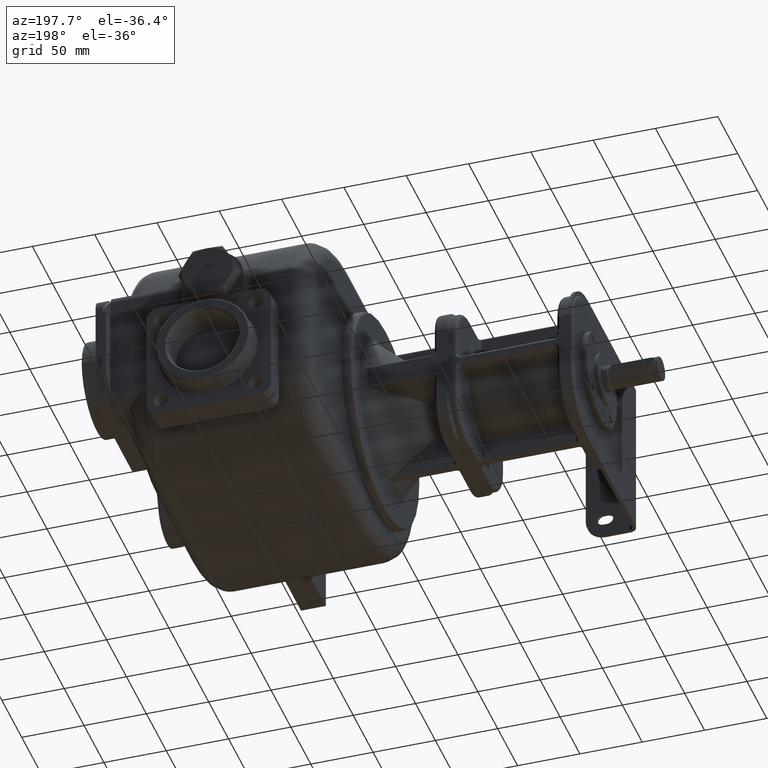
[diagram: clean part render]
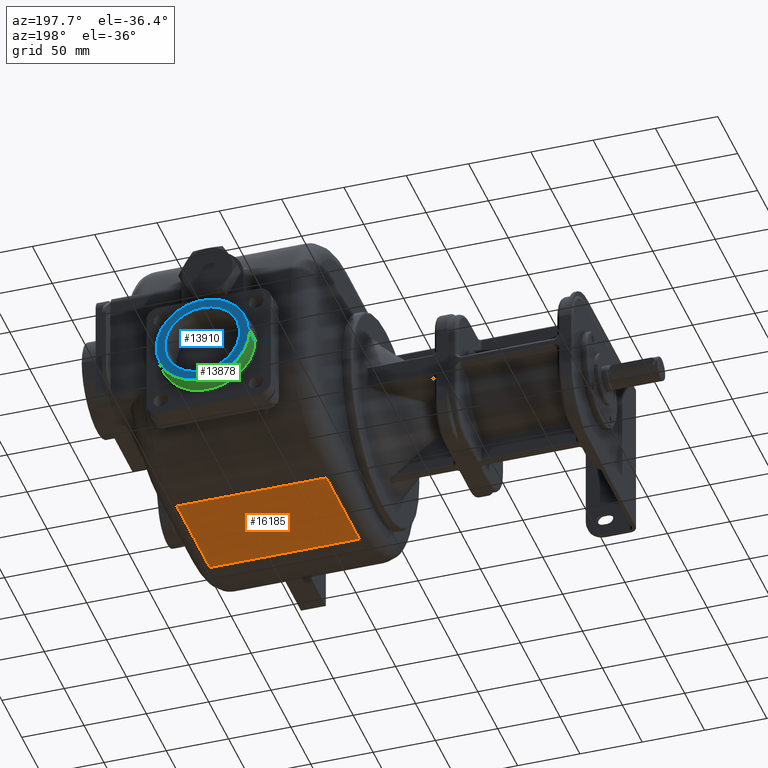
[diagram: same view with three faces highlighted in distinct colors, each labeled with its STEP entity id]
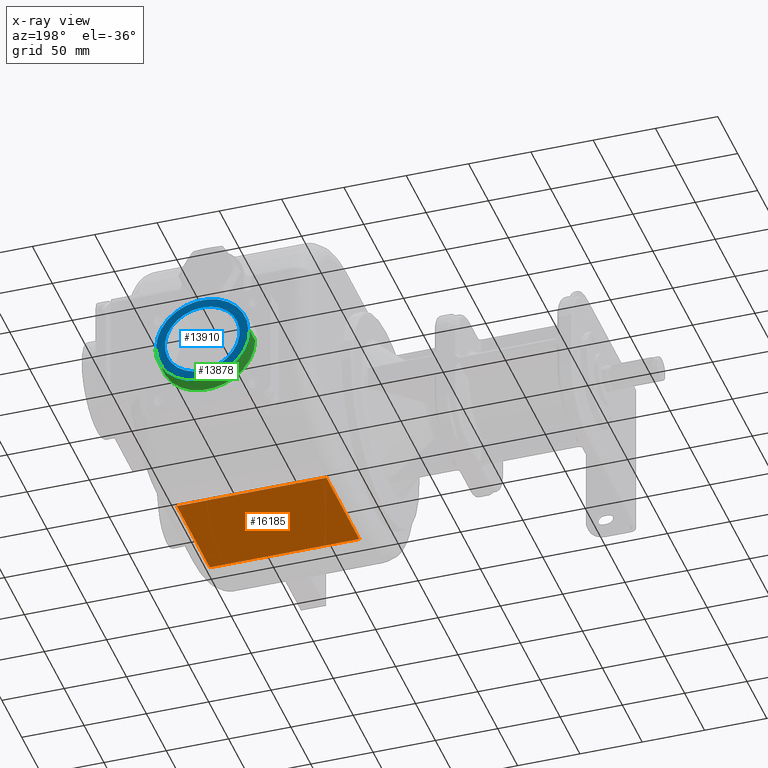
[diagram: x-ray of the same camera — body ghosted, the three highlighted faces saturated]
A machine part, auxiliary view with three faces highlighted in distinct colors.
The next image is the same camera in x-ray (body ghosted, the three faces saturated) — at least one of them is partly hidden behind the body in this view.
Their STEP definitions:

[orange] entity #16185 — the highlighted planar face has unit normal (0, 0, -1).
#2593=DIRECTION('',(0.E0,-1.E0,0.E0));
#2594=VECTOR('',#2593,8.285014036194E1);
#2595=CARTESIAN_POINT('',(-7.E1,1.868501403620E2,-1.03E2));
#2596=LINE('',#2595,#2594);
#2597=DIRECTION('',(0.E0,1.E0,0.E0));
#2598=VECTOR('',#2597,8.285014036159E1);
#2599=CARTESIAN_POINT('',(5.E1,1.04E2,-1.03E2));
#2600=LINE('',#2599,#2598);
#2601=DIRECTION('',(1.E0,-2.978595148306E-12,0.E0));
#2602=VECTOR('',#2601,1.2E2);
#2603=CARTESIAN_POINT('',(-7.E1,1.868501403620E2,-1.03E2));
#2604=LINE('',#2603,#2602);
#2774=DIRECTION('',(1.E0,-6.347515106124E-14,0.E0));
#2775=VECTOR('',#2774,1.2E2);
#2776=CARTESIAN_POINT('',(-7.E1,1.04E2,-1.03E2));
#2777=LINE('',#2776,#2775);
#11955=CARTESIAN_POINT('',(5.E1,1.868501403619E2,-1.03E2));
#11957=VERTEX_POINT('',#11955);
#11965=CARTESIAN_POINT('',(5.E1,1.04E2,-1.03E2));
#11966=VERTEX_POINT('',#11965);
#11994=CARTESIAN_POINT('',(-7.E1,1.868501403619E2,-1.03E2));
#11996=VERTEX_POINT('',#11994);
#11999=CARTESIAN_POINT('',(-7.E1,1.04E2,-1.03E2));
#12000=VERTEX_POINT('',#11999);
#16172=CARTESIAN_POINT('',(-8.5E1,1.868501403619E2,-1.03E2));
#16173=DIRECTION('',(0.E0,0.E0,-1.E0));
#16174=DIRECTION('',(0.E0,-1.E0,0.E0));
#16175=AXIS2_PLACEMENT_3D('',#16172,#16173,#16174);
#16176=PLANE('',#16175);
#16178=ORIENTED_EDGE('',*,*,#16177,.T.);
#16180=ORIENTED_EDGE('',*,*,#16179,.T.);
#16181=ORIENTED_EDGE('',*,*,#15191,.T.);
#16182=ORIENTED_EDGE('',*,*,#14621,.F.);
#16183=EDGE_LOOP('',(#16178,#16180,#16181,#16182));
#16184=FACE_OUTER_BOUND('',#16183,.F.);
#16185=ADVANCED_FACE('',(#16184),#16176,.T.);
#14621=EDGE_CURVE('',#11996,#11957,#2604,.T.);
#15191=EDGE_CURVE('',#11966,#11957,#2600,.T.);
#16177=EDGE_CURVE('',#11996,#12000,#2596,.T.);
#16179=EDGE_CURVE('',#12000,#11966,#2777,.T.);

[blue] entity #13910 — the highlighted planar face has unit normal (0, 1, 0).
#319=CARTESIAN_POINT('',(-1.E1,3.11E2,-4.5E1));
#320=DIRECTION('',(0.E0,1.E0,0.E0));
#321=DIRECTION('',(-1.E0,0.E0,0.E0));
#322=AXIS2_PLACEMENT_3D('',#319,#320,#321);
#324=CARTESIAN_POINT('',(-1.E1,3.11E2,-4.5E1));
#325=DIRECTION('',(0.E0,1.E0,0.E0));
#326=DIRECTION('',(1.E0,0.E0,0.E0));
#327=AXIS2_PLACEMENT_3D('',#324,#325,#326);
#329=CARTESIAN_POINT('',(-1.E1,3.11E2,-4.5E1));
#330=DIRECTION('',(0.E0,1.E0,0.E0));
#331=DIRECTION('',(0.E0,0.E0,1.E0));
#332=AXIS2_PLACEMENT_3D('',#329,#330,#331);
#334=CARTESIAN_POINT('',(-1.E1,3.11E2,-4.5E1));
#335=DIRECTION('',(0.E0,1.E0,0.E0));
#336=DIRECTION('',(0.E0,0.E0,-1.E0));
#337=AXIS2_PLACEMENT_3D('',#334,#335,#336);
#12504=CARTESIAN_POINT('',(-1.E1,3.11E2,-1.5E1));
#12505=VERTEX_POINT('',#12504);
#12506=CARTESIAN_POINT('',(-1.E1,3.11E2,-7.5E1));
#12507=VERTEX_POINT('',#12506);
#12548=CARTESIAN_POINT('',(-4.7E1,3.11E2,-4.5E1));
#12549=CARTESIAN_POINT('',(2.7E1,3.11E2,-4.5E1));
#12550=VERTEX_POINT('',#12548);
#12551=VERTEX_POINT('',#12549);
#13894=CARTESIAN_POINT('',(-1.E1,3.11E2,-4.5E1));
#13895=DIRECTION('',(0.E0,1.E0,0.E0));
#13896=DIRECTION('',(0.E0,0.E0,1.E0));
#13897=AXIS2_PLACEMENT_3D('',#13894,#13895,#13896);
#13898=PLANE('',#13897);
#13900=ORIENTED_EDGE('',*,*,#13899,.F.);
#13901=ORIENTED_EDGE('',*,*,#13884,.F.);
#13902=EDGE_LOOP('',(#13900,#13901));
#13903=FACE_OUTER_BOUND('',#13902,.F.);
#13905=ORIENTED_EDGE('',*,*,#13904,.T.);
#13907=ORIENTED_EDGE('',*,*,#13906,.T.);
#13908=EDGE_LOOP('',(#13905,#13907));
#13909=FACE_BOUND('',#13908,.F.);
#13910=ADVANCED_FACE('',(#13903,#13909),#13898,.T.);
#323=CIRCLE('',#322,3.7E1);
#328=CIRCLE('',#327,3.7E1);
#333=CIRCLE('',#332,3.E1);
#338=CIRCLE('',#337,3.E1);
#13884=EDGE_CURVE('',#12551,#12550,#328,.T.);
#13899=EDGE_CURVE('',#12550,#12551,#323,.T.);
#13904=EDGE_CURVE('',#12505,#12507,#333,.T.);
#13906=EDGE_CURVE('',#12507,#12505,#338,.T.);

[green] entity #13878 — the highlighted cylindrical surface (partial cylindrical patch) has radius 38 mm, axis along (0, 1, 0).
#305=CARTESIAN_POINT('',(-1.E1,2.97E2,-4.5E1));
#306=DIRECTION('',(0.E0,1.E0,0.E0));
#307=DIRECTION('',(1.E0,0.E0,0.E0));
#308=AXIS2_PLACEMENT_3D('',#305,#306,#307);
#310=CARTESIAN_POINT('',(-1.E1,3.1E2,-4.5E1));
#311=DIRECTION('',(0.E0,1.E0,0.E0));
#312=DIRECTION('',(1.E0,0.E0,0.E0));
#313=AXIS2_PLACEMENT_3D('',#310,#311,#312);
#348=DIRECTION('',(0.E0,-1.E0,0.E0));
#349=VECTOR('',#348,1.3E1);
#350=CARTESIAN_POINT('',(2.8E1,3.1E2,-4.5E1));
#351=LINE('',#350,#349);
#352=DIRECTION('',(0.E0,-1.E0,0.E0));
#353=VECTOR('',#352,1.3E1);
#354=CARTESIAN_POINT('',(-4.8E1,3.1E2,-4.5E1));
#355=LINE('',#354,#353);
#12508=CARTESIAN_POINT('',(2.8E1,2.97E2,-4.5E1));
#12510=VERTEX_POINT('',#12508);
#12512=CARTESIAN_POINT('',(-4.8E1,2.97E2,-4.5E1));
#12514=VERTEX_POINT('',#12512);
#12552=CARTESIAN_POINT('',(-4.8E1,3.1E2,-4.5E1));
#12553=CARTESIAN_POINT('',(2.8E1,3.1E2,-4.5E1));
#12554=VERTEX_POINT('',#12552);
#12555=VERTEX_POINT('',#12553);
#13864=CARTESIAN_POINT('',(-1.E1,2.858E2,-4.5E1));
#13865=DIRECTION('',(0.E0,1.E0,0.E0));
#13866=DIRECTION('',(1.E0,0.E0,0.E0));
#13867=AXIS2_PLACEMENT_3D('',#13864,#13865,#13866);
#13868=CYLINDRICAL_SURFACE('',#13867,3.8E1);
#13870=ORIENTED_EDGE('',*,*,#13869,.T.);
#13872=ORIENTED_EDGE('',*,*,#13871,.T.);
#13873=ORIENTED_EDGE('',*,*,#13857,.F.);
#13875=ORIENTED_EDGE('',*,*,#13874,.F.);
#13876=EDGE_LOOP('',(#13870,#13872,#13873,#13875));
#13877=FACE_OUTER_BOUND('',#13876,.F.);
#13878=ADVANCED_FACE('',(#13877),#13868,.T.);
#309=CIRCLE('',#308,3.8E1);
#314=CIRCLE('',#313,3.8E1);
#13857=EDGE_CURVE('',#12510,#12514,#309,.T.);
#13869=EDGE_CURVE('',#12555,#12554,#314,.T.);
#13871=EDGE_CURVE('',#12554,#12514,#355,.T.);
#13874=EDGE_CURVE('',#12555,#12510,#351,.T.);